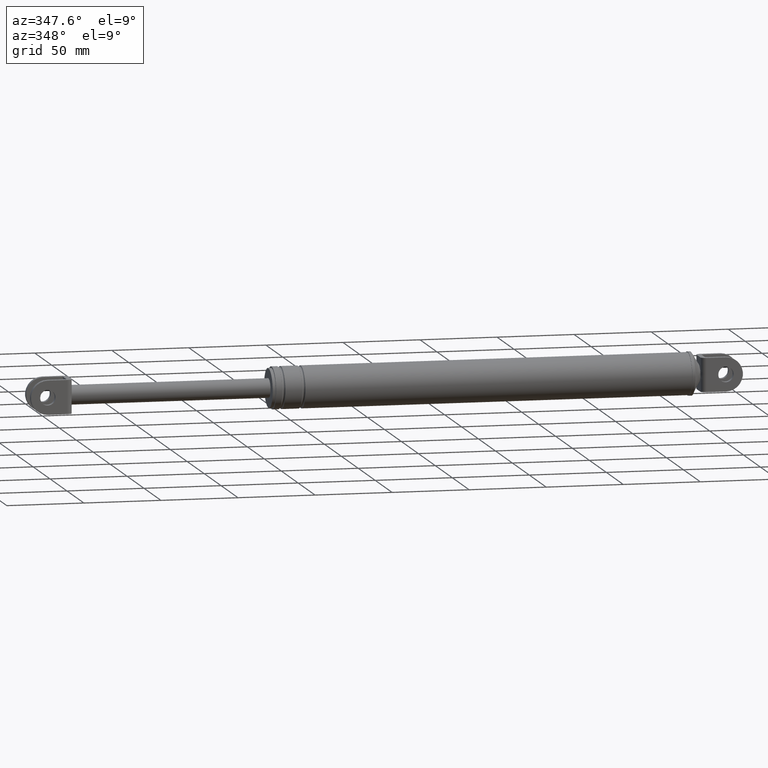
[diagram: clean part render]
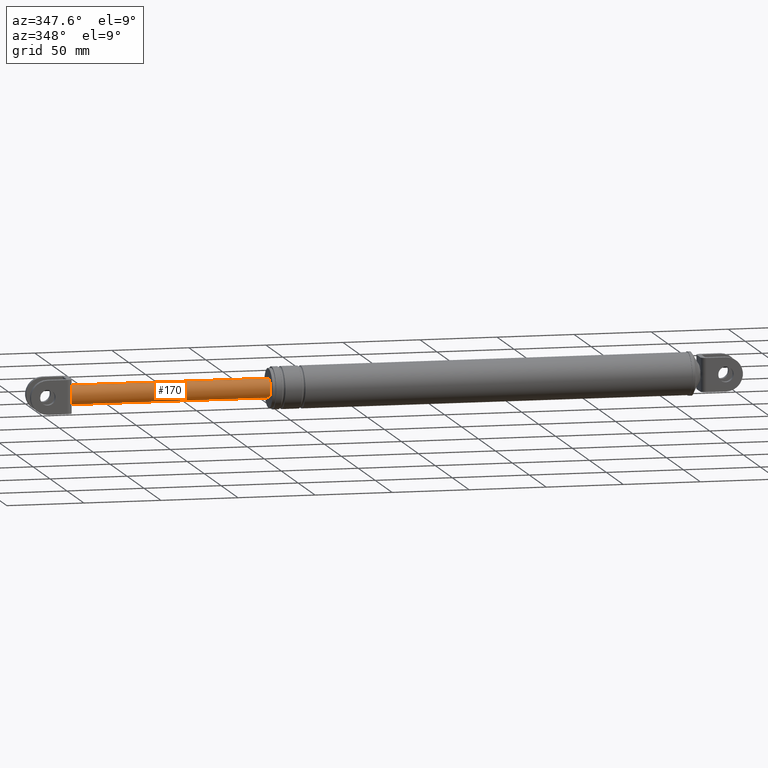
[diagram: same view with one face highlighted and labeled with its STEP entity id]
A machine part, auxiliary view. The second image highlights one B-rep face of the part: STEP entity #170.
In plain terms, the highlighted cylindrical surface (edge-blend (fillet) strip) has radius 6.25 mm, axis along (-1, 0, 0).
Its self-contained STEP definition (entity closure, byte-faithful):
#170=ADVANCED_FACE('',(#767),#766,.T.);
#766=CYLINDRICAL_SURFACE('',#2080,6.25000000000E+000);
#767=FACE_OUTER_BOUND('',#2081,.T.);
#2077=CARTESIAN_POINT('',(-3.32460913929E+000,-3.41042228289E-013,1.89728345508E+002));
#2078=DIRECTION('',(-1.00000000000E+000,8.03887338846E-016,5.15686441477E-029));
#2079=DIRECTION('',(9.63272986039E-031,6.53473622425E-014,-1.00000000000E+000));
#2080=AXIS2_PLACEMENT_3D('',#2077,#2078,#2079);
#2081=EDGE_LOOP('',(#2391,#2392,#2393,#2394,#2395,#2396));
#2391=ORIENTED_EDGE('',*,*,#2556,.F.);
#2392=ORIENTED_EDGE('',*,*,#2566,.F.);
#2393=ORIENTED_EDGE('',*,*,#2552,.F.);
#2394=ORIENTED_EDGE('',*,*,#2569,.F.);
#2395=ORIENTED_EDGE('',*,*,#2567,.F.);
#2396=ORIENTED_EDGE('',*,*,#2570,.T.);
#2552=EDGE_CURVE('',#3454,#3461,#3462,.T.);
#2556=EDGE_CURVE('',#3382,#3488,#3489,.T.);
#2566=EDGE_CURVE('',#3461,#3382,#3553,.T.);
#2567=EDGE_CURVE('',#3559,#3560,#3561,.T.);
#2569=EDGE_CURVE('',#3560,#3454,#3573,.T.);
#2570=EDGE_CURVE('',#3559,#3488,#3579,.T.);
#3382=VERTEX_POINT('',#4139);
#3454=VERTEX_POINT('',#4181);
#3461=VERTEX_POINT('',#4186);
#3462=CIRCLE('',#4190,6.25000000000E+000);
#3488=VERTEX_POINT('',#4204);
#3489=CIRCLE('',#4208,6.25000000000E+000);
#3553=(BOUNDED_CURVE() B_SPLINE_CURVE(3,(#4263,#4264,#4265,#4266,#4267,#4268,#4269,#4270,#4271,#4272,#4273,#4274,#4275,#4276),.UNSPECIFIED.,.F.,.F.) B_SPLINE_CURVE_WITH_KNOTS((4,2,2,2,2,2,4),(1.05490729700E-015,1.53874816972E-003,2.30812225457E-003,3.07749633943E-003,3.84687042429E-003,4.61624450914E-003,6.15499267886E-003),.UNSPECIFIED.) CURVE() GEOMETRIC_REPRESENTATION_ITEM() RATIONAL_B_SPLINE_CURVE((1.00000000000E+000,1.00000000000E+000,1.00000000000E+000,1.00000000000E+000,1.00000000000E+000,1.00000000000E+000,1.00000000000E+000,1.00000000000E+000,1.00000000000E+000,1.00000000000E+000,1.00000000000E+000,1.00000000000E+000,1.00000000000E+000,1.00000000000E+000)) REPRESENTATION_ITEM('') );
#3559=VERTEX_POINT('',#4277);
#3560=VERTEX_POINT('',#4278);
#3561=CIRCLE('',#4282,6.25000000000E+000);
#3573=(BOUNDED_CURVE() B_SPLINE_CURVE(1,(#4287,#4288),.UNSPECIFIED.,.F.,.F.) B_SPLINE_CURVE_WITH_KNOTS((2,2),(6.71140225601E-002,9.32884912048E-001),.UNSPECIFIED.) CURVE() GEOMETRIC_REPRESENTATION_ITEM() RATIONAL_B_SPLINE_CURVE((1.00000000000E+000,1.00000000000E+000)) REPRESENTATION_ITEM('') );
#3579=(BOUNDED_CURVE() B_SPLINE_CURVE(1,(#4289,#4290),.UNSPECIFIED.,.F.,.F.) B_SPLINE_CURVE_WITH_KNOTS((2,2),(6.71140224430E-002,9.32884911957E-001),.UNSPECIFIED.) CURVE() GEOMETRIC_REPRESENTATION_ITEM() RATIONAL_B_SPLINE_CURVE((7.50000000000E-001,7.50000000000E-001)) REPRESENTATION_ITEM('') );
#4139=CARTESIAN_POINT('',(6.67539086071E+000,-5.49999700000E+000,1.92696936588E+002));
#4181=CARTESIAN_POINT('',(6.67539086071E+000,-4.21341194098E-012,1.83478345508E+002));
#4186=CARTESIAN_POINT('',(6.67539086071E+000,-5.49999700000E+000,1.86759754428E+002));
#4187=CARTESIAN_POINT('',(6.67539086071E+000,-6.90558721317E-013,1.89728345508E+002));
#4188=DIRECTION('',(-1.00000000000E+000,0.00000000000E+000,0.00000000000E+000));
#4189=DIRECTION('',(-0.00000000000E+000,-8.79999520000E-001,4.74974572793E-001));
#4190=AXIS2_PLACEMENT_3D('',#4187,#4188,#4189);
#4204=CARTESIAN_POINT('',(6.67539086071E+000,7.89965395271E-007,1.95978345508E+002));
#4205=CARTESIAN_POINT('',(6.67539086071E+000,2.88657986403E-013,1.89728345508E+002));
#4206=DIRECTION('',(-1.00000000000E+000,-4.94022366089E-017,-9.15289933251E-017));
#4207=DIRECTION('',(4.93038065763E-032,8.79999520000E-001,-4.74974572793E-001));
#4208=AXIS2_PLACEMENT_3D('',#4205,#4206,#4207);
#4263=CARTESIAN_POINT('',(6.67539086071E+000,-5.49999700000E+000,1.86759754428E+002));
#4264=CARTESIAN_POINT('',(6.67539086071E+000,-5.74712672501E+000,1.87217619021E+002));
#4265=CARTESIAN_POINT('',(6.67544874159E+000,-5.93278395134E+000,1.87696282287E+002));
#4266=CARTESIAN_POINT('',(6.67535211818E+000,-6.12211317241E+000,1.88444442516E+002));
#4267=CARTESIAN_POINT('',(6.67523792176E+000,-6.17036546657E+000,1.88700692921E+002));
#4268=CARTESIAN_POINT('',(6.67525492907E+000,-6.23420315065E+000,1.89214350463E+002));
#4269=CARTESIAN_POINT('',(6.67539116690E+000,-6.24996416999E+000,1.89470999578E+002));
#4270=CARTESIAN_POINT('',(6.67539055373E+000,-6.25003570844E+000,1.89983948123E+002));
#4271=CARTESIAN_POINT('',(6.67524975817E+000,-6.23434520654E+000,1.90240247542E+002));
#4272=CARTESIAN_POINT('',(6.67523208615E+000,-6.17091822753E+000,1.90752490066E+002));
#4273=CARTESIAN_POINT('',(6.67535040483E+000,-6.12273082003E+000,1.91009444667E+002));
#4274=CARTESIAN_POINT('',(6.67545124710E+000,-5.93312941346E+000,1.91759765297E+002));
#4275=CARTESIAN_POINT('',(6.67539086071E+000,-5.74712672498E+000,1.92239071995E+002));
#4276=CARTESIAN_POINT('',(6.67539086071E+000,-5.49999700000E+000,1.92696936588E+002));
#4277=CARTESIAN_POINT('',(1.35675390861E+002,-4.52782568388E-013,1.95978345508E+002));
#4278=CARTESIAN_POINT('',(1.35675390861E+002,-4.51786756154E-013,1.83478345508E+002));
#4279=CARTESIAN_POINT('',(1.35675390861E+002,-4.52782568388E-013,1.89728345508E+002));
#4280=DIRECTION('',(1.00000000000E+000,0.00000000000E+000,-0.00000000000E+000));
#4281=DIRECTION('',(0.00000000000E+000,-1.22460635382E-016,1.00000000000E+000));
#4282=AXIS2_PLACEMENT_3D('',#4279,#4280,#4281);
#4287=CARTESIAN_POINT('',(1.35675390843E+002,-4.43615543586E-014,1.83478345508E+002));
#4288=CARTESIAN_POINT('',(6.67539084714E+000,5.93399123494E-014,1.83478345508E+002));
#4289=CARTESIAN_POINT('',(1.35675390861E+002,-8.60887308377E-013,1.95978345508E+002));
#4290=CARTESIAN_POINT('',(6.67539086071E+000,-7.57077840613E-013,1.95978345508E+002));